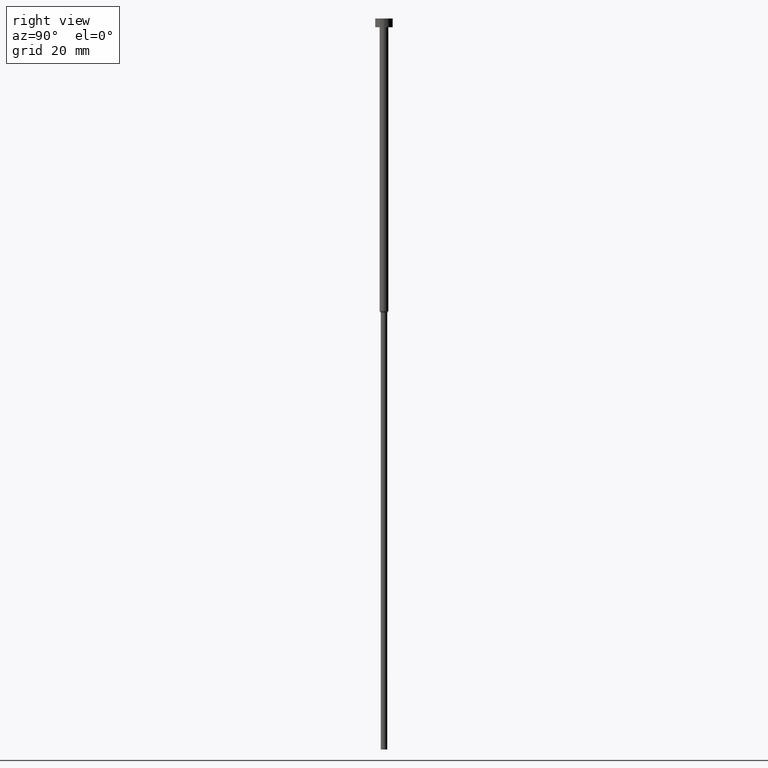
[diagram: clean part render]
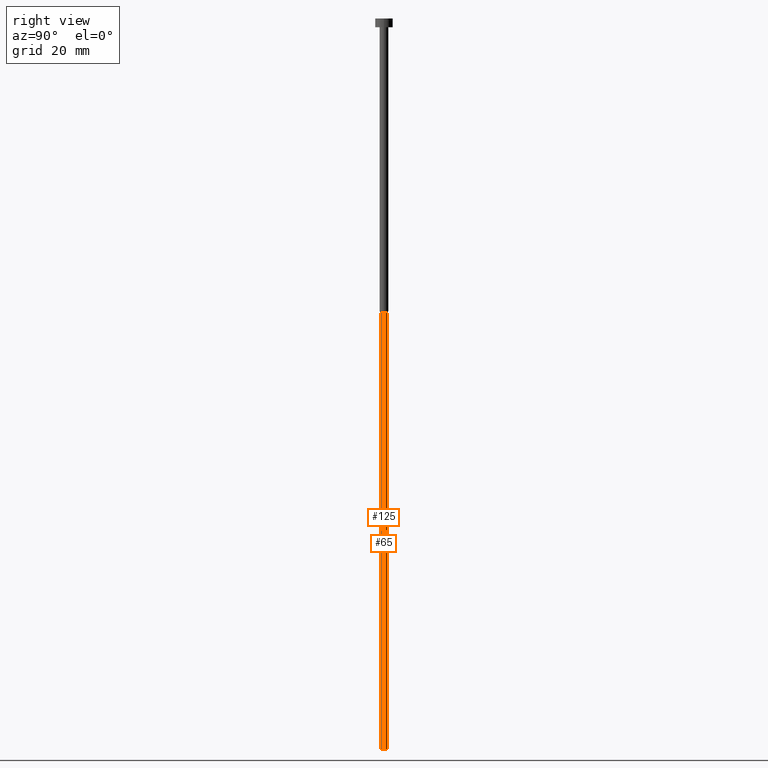
[diagram: same view with one multi-face feature highlighted, each face labeled with its STEP entity id]
A machine part, right view. The highlighted faces form ONE feature: a constant-radius fillet chain: 2 tangent blend faces with common blend radius 1.1 mm. The faces share edges in the B-rep.
Their STEP definitions:
[1] entity #125 (Cylinder):
#4 = AXIS2_PLACEMENT_3D ( 'NONE', #355, #332, #263 ) ;
#6 = CARTESIAN_POINT ( 'NONE',  ( -1.100000000000000089, 1.347111479062088503E-16, -250.0000000000000000 ) ) ;
#29 = DIRECTION ( 'NONE',  ( -0.000000000000000000, -0.000000000000000000, 1.000000000000000000 ) ) ;
#37 = VERTEX_POINT ( 'NONE', #296 ) ;
#49 = DIRECTION ( 'NONE',  ( 1.000000000000000000, 0.000000000000000000, 0.000000000000000000 ) ) ;
#56 = EDGE_CURVE ( 'NONE', #230, #317, #188, .T. ) ;
#67 = ORIENTED_EDGE ( 'NONE', *, *, #354, .F. ) ;
#82 = VECTOR ( 'NONE', #29, 1000.000000000000000 ) ;
#115 = CARTESIAN_POINT ( 'NONE',  ( 1.100000000000000089, 0.000000000000000000, -250.0000000000000000 ) ) ;
#118 = CARTESIAN_POINT ( 'NONE',  ( 0.000000000000000000, 0.000000000000000000, -100.6928203230275329 ) ) ;
#125 = ADVANCED_FACE ( 'NONE', ( #249 ), #168, .T. ) ;
#131 = CARTESIAN_POINT ( 'NONE',  ( 1.100000000000000089, 0.000000000000000000, 0.000000000000000000 ) ) ;
#132 = EDGE_CURVE ( 'NONE', #321, #230, #279, .T. ) ;
#155 = ORIENTED_EDGE ( 'NONE', *, *, #132, .T. ) ;
#157 = DIRECTION ( 'NONE',  ( 1.000000000000000000, 0.000000000000000000, 0.000000000000000000 ) ) ;
#162 = DIRECTION ( 'NONE',  ( -0.000000000000000000, -0.000000000000000000, 1.000000000000000000 ) ) ;
#168 = CYLINDRICAL_SURFACE ( 'NONE', #4, 1.100000000000000089 ) ;
#185 = ORIENTED_EDGE ( 'NONE', *, *, #56, .T. ) ;
#188 = LINE ( 'NONE', #131, #303 ) ;
#195 = CIRCLE ( 'NONE', #337, 1.100000000000000089 ) ;
#202 = DIRECTION ( 'NONE',  ( -0.000000000000000000, -0.000000000000000000, 1.000000000000000000 ) ) ;
#204 = EDGE_LOOP ( 'NONE', ( #242, #155, #185, #67 ) ) ;
#230 = VERTEX_POINT ( 'NONE', #115 ) ;
#242 = ORIENTED_EDGE ( 'NONE', *, *, #328, .F. ) ;
#249 = FACE_OUTER_BOUND ( 'NONE', #204, .T. ) ;
#253 = LINE ( 'NONE', #275, #82 ) ;
#263 = DIRECTION ( 'NONE',  ( 1.000000000000000000, 0.000000000000000000, 0.000000000000000000 ) ) ;
#275 = CARTESIAN_POINT ( 'NONE',  ( -1.100000000000000089, 1.347111479062088503E-16, 0.000000000000000000 ) ) ;
#279 = CIRCLE ( 'NONE', #287, 1.100000000000000089 ) ;
#287 = AXIS2_PLACEMENT_3D ( 'NONE', #325, #162, #49 ) ;
#296 = CARTESIAN_POINT ( 'NONE',  ( -1.100000000000000089, 1.347111479062088503E-16, -100.6928203230275329 ) ) ;
#303 = VECTOR ( 'NONE', #330, 1000.000000000000000 ) ;
#304 = CARTESIAN_POINT ( 'NONE',  ( 1.100000000000000089, 0.000000000000000000, -100.6928203230275329 ) ) ;
#317 = VERTEX_POINT ( 'NONE', #304 ) ;
#321 = VERTEX_POINT ( 'NONE', #6 ) ;
#325 = CARTESIAN_POINT ( 'NONE',  ( 0.000000000000000000, 0.000000000000000000, -250.0000000000000000 ) ) ;
#328 = EDGE_CURVE ( 'NONE', #321, #37, #253, .T. ) ;
#330 = DIRECTION ( 'NONE',  ( -0.000000000000000000, -0.000000000000000000, 1.000000000000000000 ) ) ;
#332 = DIRECTION ( 'NONE',  ( -0.000000000000000000, -0.000000000000000000, 1.000000000000000000 ) ) ;
#337 = AXIS2_PLACEMENT_3D ( 'NONE', #118, #202, #157 ) ;
#354 = EDGE_CURVE ( 'NONE', #37, #317, #195, .T. ) ;
#355 = CARTESIAN_POINT ( 'NONE',  ( 0.000000000000000000, 0.000000000000000000, 0.000000000000000000 ) ) ;
[2] entity #65 (Cylinder):
#2 = CARTESIAN_POINT ( 'NONE',  ( 0.000000000000000000, 0.000000000000000000, 0.000000000000000000 ) ) ;
#6 = CARTESIAN_POINT ( 'NONE',  ( -1.100000000000000089, 1.347111479062088503E-16, -250.0000000000000000 ) ) ;
#22 = ORIENTED_EDGE ( 'NONE', *, *, #56, .F. ) ;
#29 = DIRECTION ( 'NONE',  ( -0.000000000000000000, -0.000000000000000000, 1.000000000000000000 ) ) ;
#37 = VERTEX_POINT ( 'NONE', #296 ) ;
#43 = CIRCLE ( 'NONE', #161, 1.100000000000000089 ) ;
#56 = EDGE_CURVE ( 'NONE', #230, #317, #188, .T. ) ;
#62 = ORIENTED_EDGE ( 'NONE', *, *, #328, .T. ) ;
#65 = ADVANCED_FACE ( 'NONE', ( #77 ), #350, .T. ) ;
#77 = FACE_OUTER_BOUND ( 'NONE', #133, .T. ) ;
#78 = CIRCLE ( 'NONE', #298, 1.100000000000000089 ) ;
#80 = AXIS2_PLACEMENT_3D ( 'NONE', #2, #194, #297 ) ;
#82 = VECTOR ( 'NONE', #29, 1000.000000000000000 ) ;
#85 = CARTESIAN_POINT ( 'NONE',  ( 0.000000000000000000, 0.000000000000000000, -100.6928203230275329 ) ) ;
#109 = DIRECTION ( 'NONE',  ( 1.000000000000000000, 0.000000000000000000, 0.000000000000000000 ) ) ;
#115 = CARTESIAN_POINT ( 'NONE',  ( 1.100000000000000089, 0.000000000000000000, -250.0000000000000000 ) ) ;
#131 = CARTESIAN_POINT ( 'NONE',  ( 1.100000000000000089, 0.000000000000000000, 0.000000000000000000 ) ) ;
#133 = EDGE_LOOP ( 'NONE', ( #261, #62, #209, #22 ) ) ;
#145 = DIRECTION ( 'NONE',  ( -0.000000000000000000, -0.000000000000000000, 1.000000000000000000 ) ) ;
#151 = EDGE_CURVE ( 'NONE', #317, #37, #78, .T. ) ;
#161 = AXIS2_PLACEMENT_3D ( 'NONE', #218, #145, #334 ) ;
#188 = LINE ( 'NONE', #131, #303 ) ;
#194 = DIRECTION ( 'NONE',  ( -0.000000000000000000, -0.000000000000000000, 1.000000000000000000 ) ) ;
#209 = ORIENTED_EDGE ( 'NONE', *, *, #151, .F. ) ;
#218 = CARTESIAN_POINT ( 'NONE',  ( 0.000000000000000000, 0.000000000000000000, -250.0000000000000000 ) ) ;
#230 = VERTEX_POINT ( 'NONE', #115 ) ;
#253 = LINE ( 'NONE', #275, #82 ) ;
#261 = ORIENTED_EDGE ( 'NONE', *, *, #309, .T. ) ;
#275 = CARTESIAN_POINT ( 'NONE',  ( -1.100000000000000089, 1.347111479062088503E-16, 0.000000000000000000 ) ) ;
#278 = DIRECTION ( 'NONE',  ( -0.000000000000000000, -0.000000000000000000, 1.000000000000000000 ) ) ;
#296 = CARTESIAN_POINT ( 'NONE',  ( -1.100000000000000089, 1.347111479062088503E-16, -100.6928203230275329 ) ) ;
#297 = DIRECTION ( 'NONE',  ( 1.000000000000000000, 0.000000000000000000, 0.000000000000000000 ) ) ;
#298 = AXIS2_PLACEMENT_3D ( 'NONE', #85, #278, #109 ) ;
#303 = VECTOR ( 'NONE', #330, 1000.000000000000000 ) ;
#304 = CARTESIAN_POINT ( 'NONE',  ( 1.100000000000000089, 0.000000000000000000, -100.6928203230275329 ) ) ;
#309 = EDGE_CURVE ( 'NONE', #230, #321, #43, .T. ) ;
#317 = VERTEX_POINT ( 'NONE', #304 ) ;
#321 = VERTEX_POINT ( 'NONE', #6 ) ;
#328 = EDGE_CURVE ( 'NONE', #321, #37, #253, .T. ) ;
#330 = DIRECTION ( 'NONE',  ( -0.000000000000000000, -0.000000000000000000, 1.000000000000000000 ) ) ;
#334 = DIRECTION ( 'NONE',  ( 1.000000000000000000, 0.000000000000000000, 0.000000000000000000 ) ) ;
#350 = CYLINDRICAL_SURFACE ( 'NONE', #80, 1.100000000000000089 ) ;